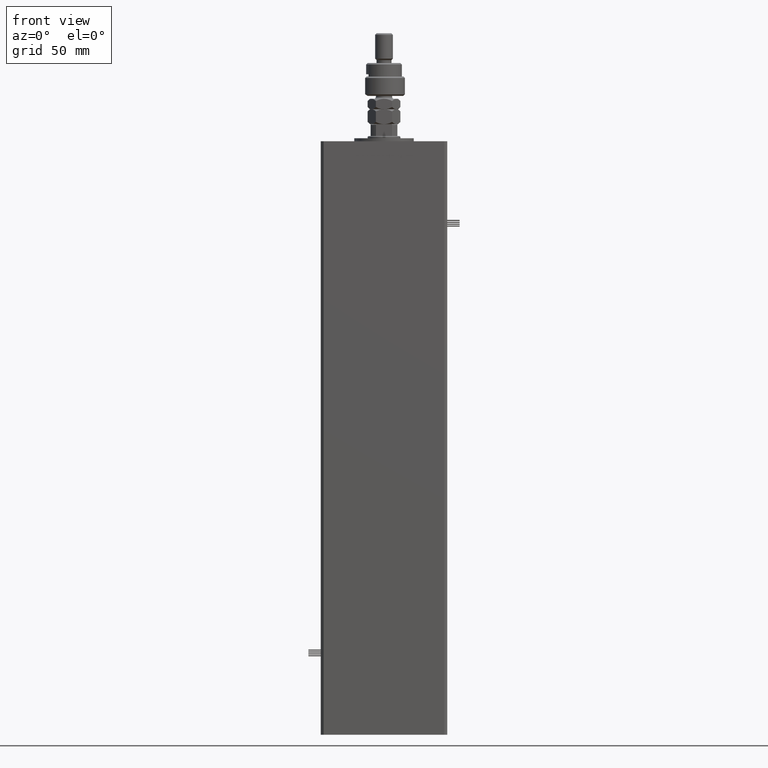
[diagram: clean part render]
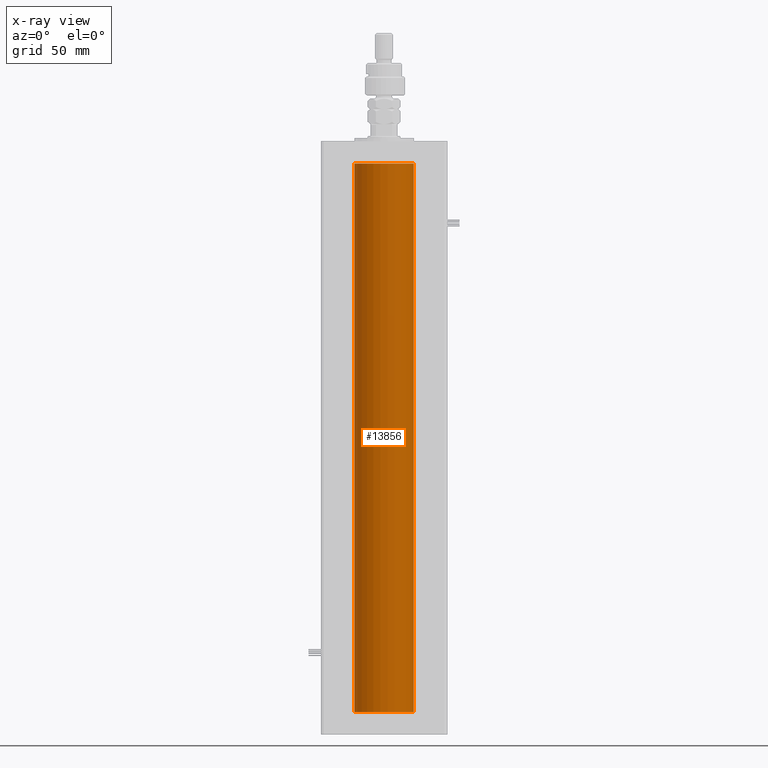
[diagram: x-ray — body ghosted, one internal face saturated and labeled with its STEP entity id]
A machine part, front view, then the same camera in x-ray: the body is ghosted and one INTERNAL B-rep face — a face not visible from any outside direction — is saturated and labeled: STEP entity #13856.
In plain terms, the highlighted cylindrical surface (edge-blend (fillet) strip) has radius 20 mm, axis along (-0, -0, -1).
Its self-contained STEP definition (entity closure, byte-faithful):
#157 = CARTESIAN_POINT ( 'NONE',  ( 20.00000000000000000, 2.449293598294706513E-15, 368.5000000000000000 ) ) ;
#1055 = CIRCLE ( 'NONE', #3867, 20.00000000000000000 ) ;
#2830 = DIRECTION ( 'NONE',  ( -1.000000000000000000, 0.000000000000000000, 0.000000000000000000 ) ) ;
#3681 = CARTESIAN_POINT ( 'NONE',  ( 0.000000000000000000, 0.000000000000000000, 0.000000000000000000 ) ) ;
#3867 = AXIS2_PLACEMENT_3D ( 'NONE', #3681, #38606, #43288 ) ;
#7191 = AXIS2_PLACEMENT_3D ( 'NONE', #43015, #34509, #2830 ) ;
#7635 = EDGE_CURVE ( 'NONE', #57817, #31687, #54133, .T. ) ;
#11115 = DIRECTION ( 'NONE',  ( 1.000000000000000000, 0.000000000000000000, 0.000000000000000000 ) ) ;
#13856 = ADVANCED_FACE ( 'NONE', ( #25410 ), #39179, .F. ) ;
#13956 = DIRECTION ( 'NONE',  ( -0.000000000000000000, -0.000000000000000000, -1.000000000000000000 ) ) ;
#14859 = CARTESIAN_POINT ( 'NONE',  ( 20.00000000000000000, 2.449293598294706513E-15, 368.5000000000000000 ) ) ;
#24527 = VERTEX_POINT ( 'NONE', #44899 ) ;
#25410 = FACE_OUTER_BOUND ( 'NONE', #39234, .T. ) ;
#26311 = EDGE_CURVE ( 'NONE', #24527, #31686, #33105, .T. ) ;
#29196 = VECTOR ( 'NONE', #46875, 1000.000000000000000 ) ;
#29312 = EDGE_CURVE ( 'NONE', #24527, #57817, #42231, .T. ) ;
#30197 = AXIS2_PLACEMENT_3D ( 'NONE', #38088, #51279, #11115 ) ;
#31686 = VERTEX_POINT ( 'NONE', #35166 ) ;
#31687 = VERTEX_POINT ( 'NONE', #43954 ) ;
#33056 = ORIENTED_EDGE ( 'NONE', *, *, #26311, .F. ) ;
#33105 = LINE ( 'NONE', #42167, #29196 ) ;
#34509 = DIRECTION ( 'NONE',  ( -0.000000000000000000, -0.000000000000000000, -1.000000000000000000 ) ) ;
#35166 = CARTESIAN_POINT ( 'NONE',  ( -20.00000000000000000, 0.000000000000000000, 0.000000000000000000 ) ) ;
#38088 = CARTESIAN_POINT ( 'NONE',  ( 0.000000000000000000, 0.000000000000000000, 368.5000000000000000 ) ) ;
#38606 = DIRECTION ( 'NONE',  ( -0.000000000000000000, 0.000000000000000000, 1.000000000000000000 ) ) ;
#39179 = CYLINDRICAL_SURFACE ( 'NONE', #7191, 20.00000000000000000 ) ;
#39234 = EDGE_LOOP ( 'NONE', ( #51269, #47267, #55056, #33056 ) ) ;
#42167 = CARTESIAN_POINT ( 'NONE',  ( -20.00000000000000000, 0.000000000000000000, 368.5000000000000000 ) ) ;
#42231 = CIRCLE ( 'NONE', #30197, 20.00000000000000000 ) ;
#43015 = CARTESIAN_POINT ( 'NONE',  ( 0.000000000000000000, 0.000000000000000000, 368.5000000000000000 ) ) ;
#43288 = DIRECTION ( 'NONE',  ( 1.000000000000000000, 0.000000000000000000, 0.000000000000000000 ) ) ;
#43954 = CARTESIAN_POINT ( 'NONE',  ( 20.00000000000000000, 2.449293598294706513E-15, 0.000000000000000000 ) ) ;
#44899 = CARTESIAN_POINT ( 'NONE',  ( -20.00000000000000000, 0.000000000000000000, 368.5000000000000000 ) ) ;
#46875 = DIRECTION ( 'NONE',  ( -0.000000000000000000, -0.000000000000000000, -1.000000000000000000 ) ) ;
#47267 = ORIENTED_EDGE ( 'NONE', *, *, #7635, .T. ) ;
#51269 = ORIENTED_EDGE ( 'NONE', *, *, #29312, .T. ) ;
#51279 = DIRECTION ( 'NONE',  ( -0.000000000000000000, 0.000000000000000000, 1.000000000000000000 ) ) ;
#52986 = VECTOR ( 'NONE', #13956, 1000.000000000000000 ) ;
#53609 = EDGE_CURVE ( 'NONE', #31686, #31687, #1055, .T. ) ;
#54133 = LINE ( 'NONE', #157, #52986 ) ;
#55056 = ORIENTED_EDGE ( 'NONE', *, *, #53609, .F. ) ;
#57817 = VERTEX_POINT ( 'NONE', #14859 ) ;